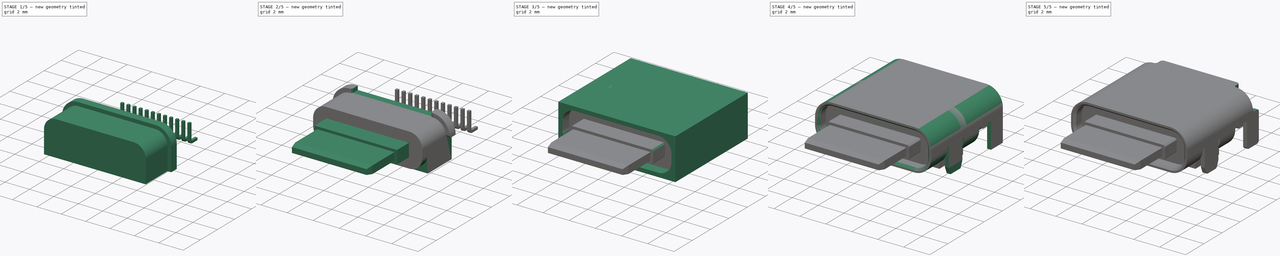
[diagram: build sequence overview — one tinted view per stage of 5, left to right]
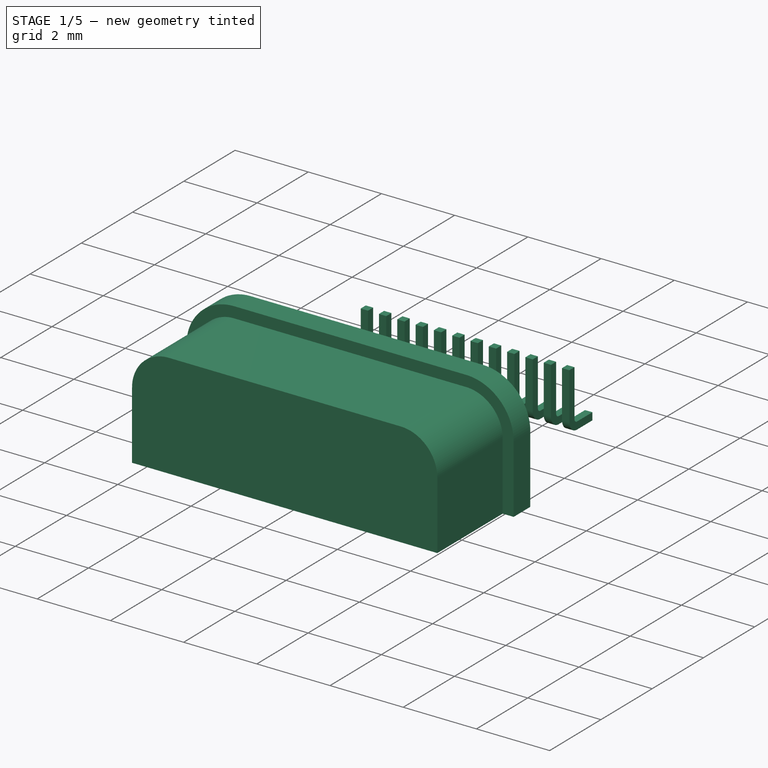
[diagram: stage 1 of 5 — iso view after this stage's code; geometry added in this stage tinted green]
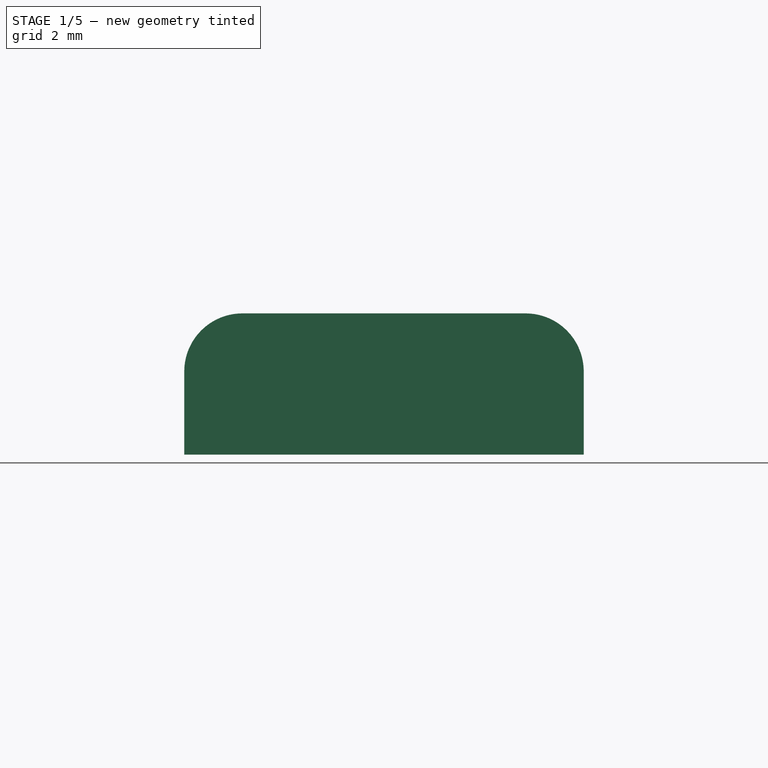
[diagram: stage 1 of 5 — front view after this stage's code; geometry added in this stage tinted green]
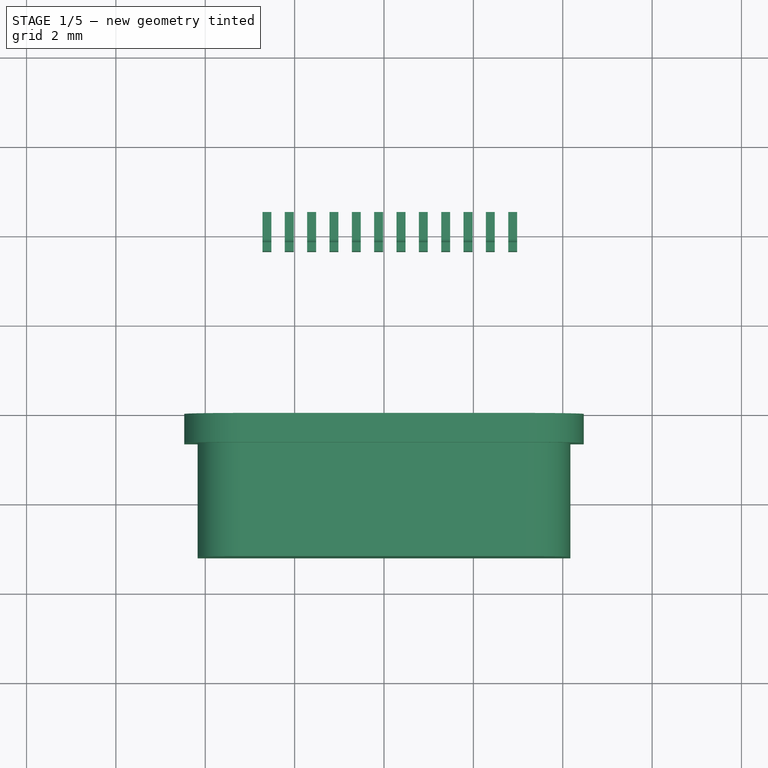
[diagram: stage 1 of 5 — top view after this stage's code; geometry added in this stage tinted green]
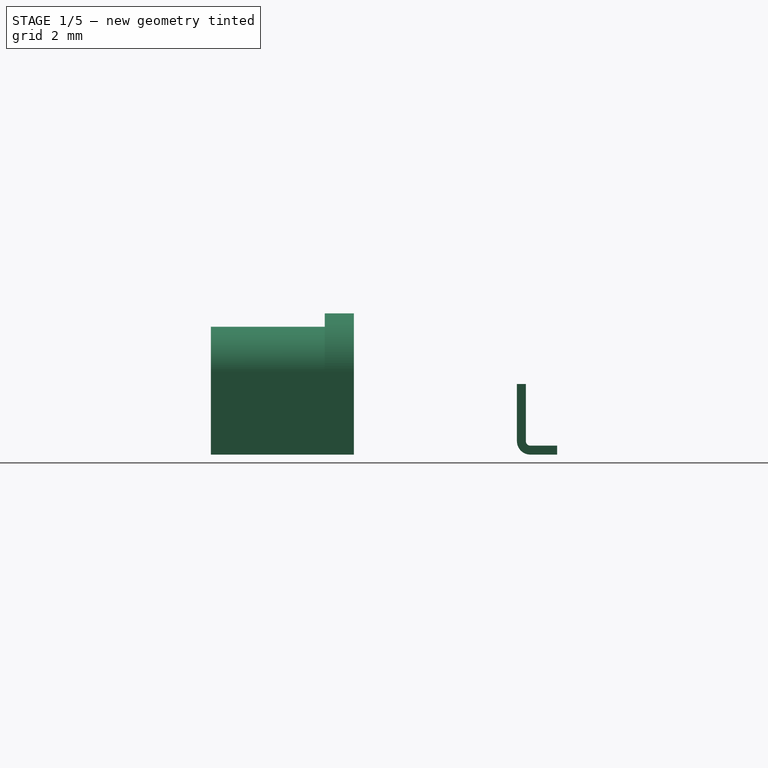
[diagram: stage 1 of 5 — right view after this stage's code; geometry added in this stage tinted green]
FCSTD DOCUMENT  (FreeCAD 0.20R29177 (Git))
Label: USB-C Connector
License: All rights reserved
LicenseURL: http://en.wikipedia.org/wiki/All_rights_reserved
objects: Sketcher::SketchObject×14, PartDesign::Pocket×8, PartDesign::Fillet×7, PartDesign::Pad×6, PartDesign::Chamfer×5, PartDesign::Body×3, Part::FeaturePython×1
note: 69 computed .brp shape members not serialized (recipe doc carries the construction recipe); baked Part::Feature solids carry a one-line shape summary decoded from their .brp

FEATURE [PartDesign::Body] Body
  Group = -> [Sketch,Pad,Sketch001,Pocket,Fillet,Fillet001,Chamfer,Sketch002,Pocket001,Sketch003,Pad001,Fillet002,Chamfer001,Chamfer002,Fillet003,Sketch004,Pocket002,Sketch005,Pocket003,Fillet004]
  Origin = -> Origin
  Tip = -> Fillet004
FEATURE [Sketcher::SketchObject] Sketch006
  FullyConstrained = true
  MapMode = 5
  Placement = pos=(0,0,0) rot=(1,0,0;1.5708rad)
  Support = -> [XZ_Plane001]
  sketch-geometry (4):
    g0: LineSegment StartX=-4.47 StartY=1.58 StartZ=0 EndX=4.47 EndY=1.58 EndZ=0
    g1: LineSegment StartX=4.47 StartY=1.58 StartZ=0 EndX=4.47 EndY=-1.58 EndZ=0
    g2: LineSegment StartX=4.47 StartY=-1.58 StartZ=0 EndX=-4.47 EndY=-1.58 EndZ=0
    g3: LineSegment StartX=-4.47 StartY=-1.58 StartZ=0 EndX=-4.47 EndY=1.58 EndZ=0
  constraints (11):
    c: Coincident(g0,g1)
    c: Coincident(g1,g2)
    c: Coincident(g2,g3)
    c: Coincident(g3,g0)
    c: Horizontal(g0)
    c: Horizontal(g2)
    c: Vertical(g1)
    c: Vertical(g3)
    c: Symmetric(g1,g0,g-1)
    c: DistanceY(g3,g3) = 3.16
    c: DistanceX(g0,g0) = 8.94
FEATURE [PartDesign::Pad] Pad002
  Direction = (0,-1,2e-16)
  Length = 3.2
  Length2 = 10
  Placement = pos=(0,0,0) rot=(1,0,0;1.5708rad)
  Profile = -> Sketch006
  ReferenceAxis = -> Sketch006 [N_Axis]
  Type = 0
FEATURE [PartDesign::Fillet] Fillet005
  Base = -> Pad002 [Edge2,Edge1]
  BaseFeature = -> Pad002
  Placement = pos=(0,0,0) rot=(1,0,0;1.5708rad)
  Radius = 1.3
  SupportTransform = false
  UseAllEdges = false
FEATURE [Sketcher::SketchObject] Sketch007
  ExternalGeometry = -> [Fillet005]
  FullyConstrained = false
  MapMode = 5
  Placement = pos=(0,-3.2,7e-16) rot=(1,0,0;1.5708rad)
  Support = -> [Fillet005]
  sketch-geometry (10):
    g0: LineSegment StartX=-4.17 StartY=-1.58 StartZ=0 EndX=4.17 EndY=-1.58 EndZ=0
    g1: LineSegment StartX=4.17 StartY=-1.58 StartZ=0 EndX=4.17 EndY=0.28 EndZ=0
    g2: LineSegment StartX=3.17 StartY=1.28 StartZ=0 EndX=-3.17 EndY=1.28 EndZ=0
    g3: LineSegment StartX=-4.17 StartY=0.28 StartZ=0 EndX=-4.17 EndY=-1.58 EndZ=0
    g4: ArcOfCircle CenterX=-3.17 CenterY=0.28 CenterZ=0 NormalX=0 NormalY=0 NormalZ=1 AngleXU=0 Radius=1 StartAngle=1.5708 EndAngle=3.14159
    g5: ArcOfCircle CenterX=3.17 CenterY=0.28 CenterZ=0 NormalX=0 NormalY=0 NormalZ=1 AngleXU=0 Radius=1 StartAngle=0 EndAngle=1.5708
    g6: LineSegment StartX=-4.85328 StartY=1.98712 StartZ=0 EndX=4.89634 EndY=1.98712 EndZ=0
    g7: LineSegment StartX=4.89633 StartY=1.98712 StartZ=0 EndX=4.89633 EndY=-1.9073 EndZ=0
    g8: LineSegment StartX=4.89633 StartY=-1.9073 StartZ=0 EndX=-4.85328 EndY=-1.9073 EndZ=0
    g9: LineSegment StartX=-4.85328 StartY=-1.9073 StartZ=0 EndX=-4.85328 EndY=1.98712 EndZ=0
  constraints (23):
    c: Coincident(g0,g1)
    c: Coincident(g3,g0)
    c: Horizontal(g2)
    c: Vertical(g1)
    c: Vertical(g3)
    c: PointOnObject(g0,g-3)
    c: Symmetric(g0,g0,g-2)
    c: DistanceX(g0,g-3) = 0.3
    c: Tangent(g2,g4) = -1.5708
    c: Tangent(g3,g4) = -1.5708
    c: Tangent(g2,g5) = -1.5708
    c: Tangent(g1,g5) = -1.5708
    c: Equal(g5,g4)
    c: Radius(g5) = 1
    c: DistanceY(g2,g-4) = 0.3
    c: Coincident(g6,g7)
    c: Coincident(g7,g8)
    c: Coincident(g8,g9)
    c: Coincident(g9,g6)
    c: Horizontal(g6)
    c: Horizontal(g8)
    c: Vertical(g7)
    c: Vertical(g9)
FEATURE [PartDesign::Pocket] Pocket004
  BaseFeature = -> Fillet005
  Direction = (0,1,-2e-16)
  Length = 2.55
  Length2 = 5
  Placement = pos=(0,0,0) rot=(1,0,0;1.5708rad)
  Profile = -> Sketch007
  ReferenceAxis = -> Sketch007 [N_Axis]
  Type = 0
FEATURE [PartDesign::Body] Body001
  Group = -> [Sketch006,Pad002,Fillet005,Sketch007,Pocket004,Sketch008,Pocket005,Sketch009,Pocket006,Fillet006,Sketch010,Pad003,Sketch011,Pad004,Chamfer003,Chamfer004,Sketch012,Pocket007]
  Origin = -> Origin001
  Placement = pos=(5.3e-15,3.95,7e-16) rot=(0,0,1;0rad)
  Tip = -> Pocket007
FEATURE [Sketcher::SketchObject] Sketch013
  FullyConstrained = true
  MapMode = 5
  Placement = pos=(0,0,0) rot=(0.57735,0.57735,0.57735;2.0944rad)
  Support = -> [YZ_Plane002]
  sketch-geometry (8):
    g0: LineSegment StartX=3.65 StartY=0 StartZ=0 EndX=3.85 EndY=0 EndZ=0
    g1: LineSegment StartX=4.55 StartY=-1.38 StartZ=0 EndX=4.55 EndY=-1.58 EndZ=0
    g2: LineSegment StartX=4.55 StartY=-1.58 StartZ=0 EndX=3.95 EndY=-1.58 EndZ=0
    g3: LineSegment StartX=3.65 StartY=-1.28 StartZ=0 EndX=3.65 EndY=0 EndZ=0
    g4: LineSegment StartX=3.85 StartY=0 StartZ=0 EndX=3.85 EndY=-1.28 EndZ=0
    g5: LineSegment StartX=3.95 StartY=-1.38 StartZ=0 EndX=4.55 EndY=-1.38 EndZ=0
    g6: ArcOfCircle CenterX=3.95 CenterY=-1.28 CenterZ=0 NormalX=0 NormalY=0 NormalZ=1 AngleXU=0 Radius=0.1 StartAngle=3.14159 EndAngle=4.71239
    g7: ArcOfCircle CenterX=3.95 CenterY=-1.28 CenterZ=0 NormalX=0 NormalY=0 NormalZ=1 AngleXU=0 Radius=0.3 StartAngle=3.14159 EndAngle=4.71239
  constraints (21):
    c: Coincident(g1,g2)
    c: Coincident(g3,g0)
    c: Horizontal(g0)
    c: Horizontal(g2)
    c: Vertical(g1)
    c: Vertical(g3)
    c: Vertical(g4)
    c: Horizontal(g5)
    c: Coincident(g0,g4)
    c: Coincident(g1,g5)
    c: DistanceY(g1,g1) = 0.2
    c: Tangent(g4,g6) = -1.5708
    c: Tangent(g5,g6) = -1.5708
    c: Tangent(g3,g7) = 1.5708
    c: Tangent(g2,g7) = 1.5708
    c: Coincident(g6,g7)
    c: DistanceY(g1,g-1) = 1.58
    c: PointOnObject(g0,g-1)
    c: Radius(g6) = 0.1
    c: DistanceX(g2,g2) = 0.6
    c: DistanceX(g-1,g0) = 3.65
FEATURE [PartDesign::Pad] Pad005
  Direction = (1,-2e-16,3e-16)
  Length = 0.2
  Length2 = 10
  Midplane = true
  Placement = pos=(0,0,0) rot=(0.57735,0.57735,0.57735;2.0944rad)
  Profile = -> Sketch013
  ReferenceAxis = -> Sketch013 [N_Axis]
  Type = 0
FEATURE [PartDesign::Body] Body002
  Group = -> [Sketch013,Pad005]
  Origin = -> Origin002
  Placement = pos=(-2.62,0,0) rot=(0,0,1;0rad)
  Tip = -> Pad005
FEATURE [Part::FeaturePython] Array  # Draft array (typed FeaturePython)
  AlwaysSyncPlacement = false
  Angle = 360
  ArrayType = 0
  Axis = (0,0,1)
  Base = -> Body002
  Center = (0,0,0)
  Count = 12
  ExpandArray = false
  Fuse = false
  IntervalAxis = (0,0,0)
  IntervalX = (0.5,0,0)
  IntervalY = (0,100,0)
  IntervalZ = (0,0,100)
  NumberCircles = 3
  NumberPolar = 5
  NumberX = 12
  NumberY = 1
  NumberZ = 1
  PlacementList = 12 placements: arithmetic series from (-2.62,0,0) step (0.5,0,0) to (2.88,0,0)
  RadialDistance = 50
  ScaleList = (12) [(1,1,1),(1,1,1),(1,1,1),(1,1,1),(1,1,1),(1,1,1),(1,1,1),(1,1,1),(1,1,1),(1,1,1),(1,1,1),(1,1,1)]
  Symmetry = 1
  TangentialDistance = 25
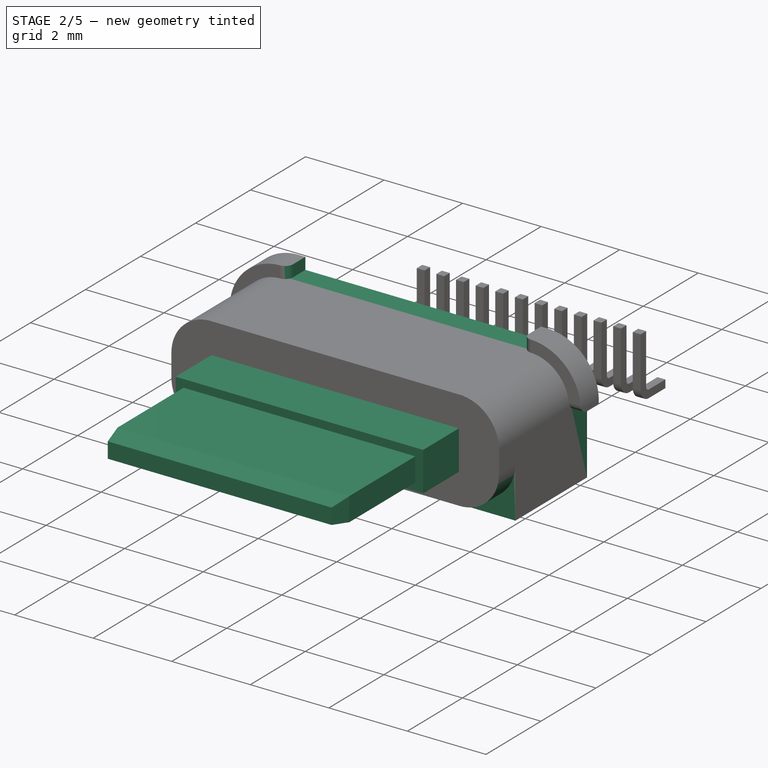
[diagram: stage 2 of 5 — iso view after this stage's code; geometry added in this stage tinted green]
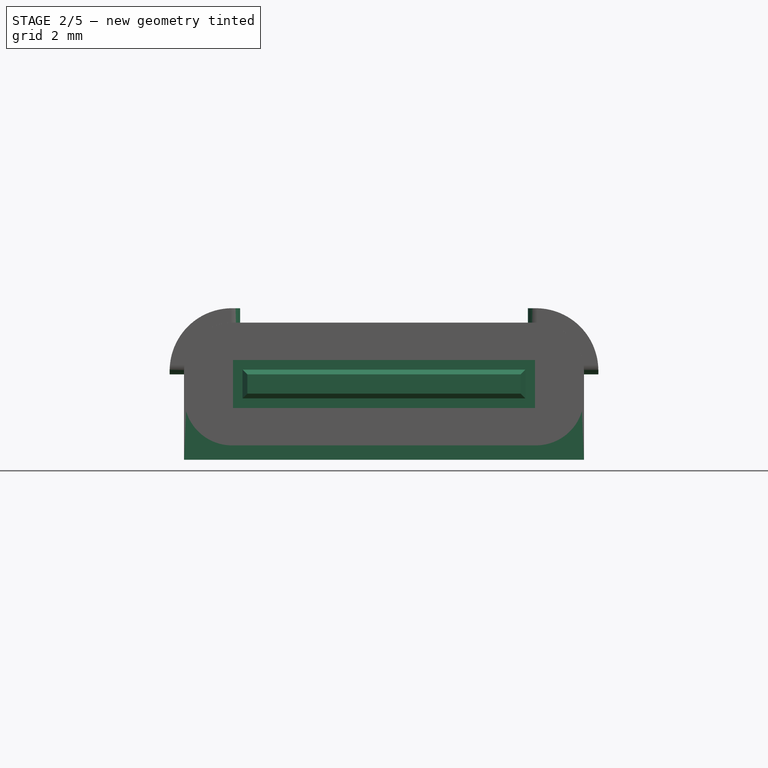
[diagram: stage 2 of 5 — front view after this stage's code; geometry added in this stage tinted green]
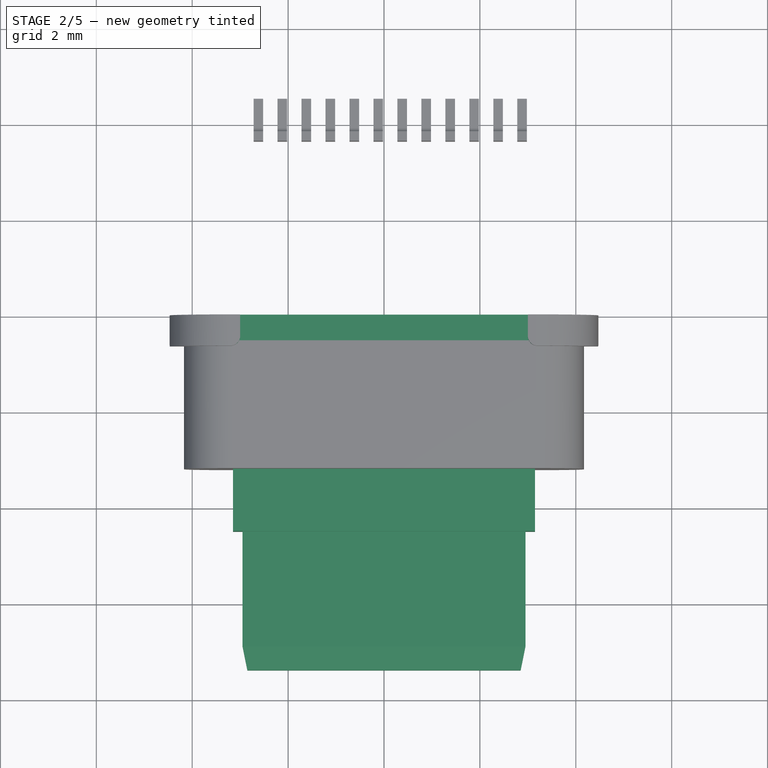
[diagram: stage 2 of 5 — top view after this stage's code; geometry added in this stage tinted green]
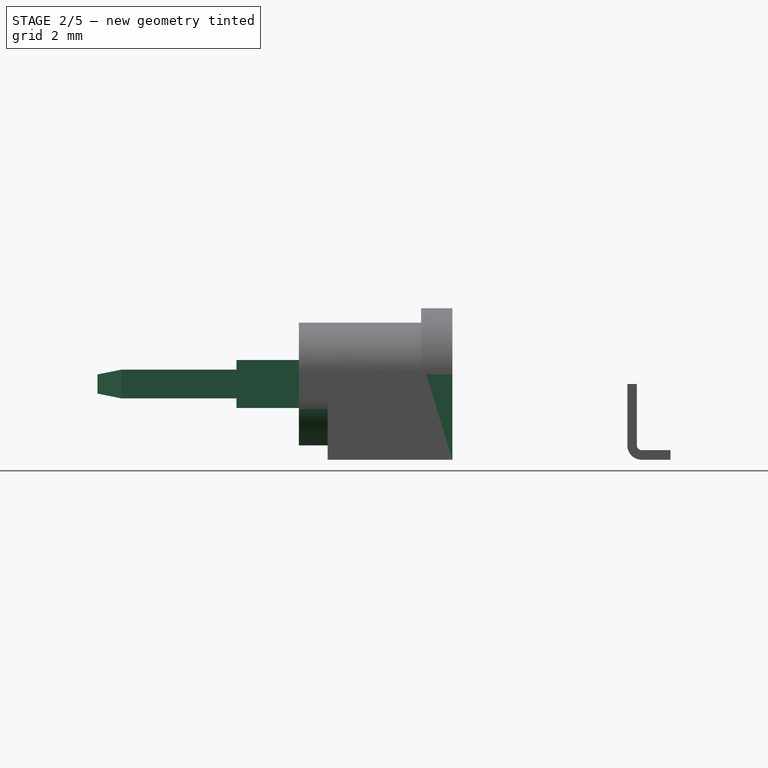
[diagram: stage 2 of 5 — right view after this stage's code; geometry added in this stage tinted green]
FEATURE [Sketcher::SketchObject] Sketch008
  FullyConstrained = true
  MapMode = 5
  Placement = pos=(0,-3.2,7e-16) rot=(1,0,0;1.5708rad)
  Support = -> [Pocket004]
  sketch-geometry (8):
    g0: LineSegment StartX=3.17 StartY=-1.28 StartZ=0 EndX=-3.17 EndY=-1.28 EndZ=0
    g1: ArcOfCircle CenterX=-3.17 CenterY=-0.28 CenterZ=0 NormalX=0 NormalY=0 NormalZ=1 AngleXU=0 Radius=1 StartAngle=3.14159 EndAngle=4.71239
    g2: ArcOfCircle CenterX=3.17 CenterY=-0.28 CenterZ=0 NormalX=0 NormalY=0 NormalZ=1 AngleXU=0 Radius=1 StartAngle=4.71239 EndAngle=6.28319
    g3: LineSegment StartX=-4.17 StartY=-0.28 StartZ=0 EndX=-5 EndY=-0.28 EndZ=0
    g4: LineSegment StartX=-5 StartY=-0.28 StartZ=0 EndX=-5 EndY=-2.28 EndZ=0
    g5: LineSegment StartX=-5 StartY=-2.28 StartZ=0 EndX=5 EndY=-2.28 EndZ=0
    g6: LineSegment StartX=5 StartY=-2.28 StartZ=0 EndX=5 EndY=-0.28 EndZ=0
    g7: LineSegment StartX=5 StartY=-0.28 StartZ=0 EndX=4.17 EndY=-0.28 EndZ=0
  constraints (23):
    c: Tangent(g0,g1) = 1.5708
    c: Tangent(g0,g2) = 1.5708
    c: Equal(g2,g1)
    c: Radius(g1) = 1
    c: Symmetric(g0,g0,g-2)
    c: DistanceY(g0,g-1) = 1.28
    c: Horizontal(g2,g2)
    c: Horizontal(g1,g1)
    c: Horizontal(g3)
    c: Coincident(g3,g4)
    c: Vertical(g4)
    c: Coincident(g4,g5)
    c: Horizontal(g5)
    c: Coincident(g5,g6)
    c: Vertical(g6)
    c: Coincident(g6,g7)
    c: Coincident(g7,g2)
    c: Horizontal(g7)
    c: Equal(g7,g3)
    c: Coincident(g1,g3)
    c: DistanceX(g1,g2) = 8.34
    c: DistanceX(g5,g5) = 10
    c: DistanceY(g6,g6) = 2
FEATURE [PartDesign::Pocket] Pocket005
  BaseFeature = -> Pocket004
  Direction = (0,1,-2e-16)
  Length = 0.6
  Length2 = 5
  Placement = pos=(0,0,0) rot=(1,0,0;1.5708rad)
  Profile = -> Sketch008
  ReferenceAxis = -> Sketch008 [N_Axis]
  Type = 0
FEATURE [Sketcher::SketchObject] Sketch009
  ExternalGeometry = -> [Pocket005]
  FullyConstrained = true
  MapMode = 5
  Placement = pos=(0,-0.65,2e-16) rot=(1,0,0;1.5708rad)
  Support = -> [Pocket005]
  sketch-geometry (12):
    g0: LineSegment StartX=-3 StartY=1.58 StartZ=0 EndX=3 EndY=1.58 EndZ=0
    g1: LineSegment StartX=3 StartY=1.58 StartZ=0 EndX=3 EndY=1.28 EndZ=0
    g2: LineSegment StartX=3 StartY=1.28 StartZ=0 EndX=-3 EndY=1.28 EndZ=0
    g3: LineSegment StartX=-3 StartY=1.28 StartZ=0 EndX=-3 EndY=1.58 EndZ=0
    g4: LineSegment StartX=4.47 StartY=0.2 StartZ=0 EndX=4.17 EndY=0.2 EndZ=0
    g5: LineSegment StartX=4.17 StartY=0.2 StartZ=0 EndX=4.17 EndY=-1.58 EndZ=0
    g6: LineSegment StartX=4.17 StartY=-1.58 StartZ=0 EndX=4.47 EndY=-1.58 EndZ=0
    g7: LineSegment StartX=4.47 StartY=-1.58 StartZ=0 EndX=4.47 EndY=0.2 EndZ=0
    g8: LineSegment StartX=-4.47 StartY=-1.58 StartZ=0 EndX=-4.17 EndY=-1.58 EndZ=0
    g9: LineSegment StartX=-4.17 StartY=-1.58 StartZ=0 EndX=-4.17 EndY=0.2 EndZ=0
    g10: LineSegment StartX=-4.17 StartY=0.2 StartZ=0 EndX=-4.47 EndY=0.2 EndZ=0
    g11: LineSegment StartX=-4.47 StartY=0.2 StartZ=0 EndX=-4.47 EndY=-1.58 EndZ=0
  constraints (33):
    c: Coincident(g0,g1)
    c: Coincident(g1,g2)
    c: Coincident(g2,g3)
    c: Coincident(g3,g0)
    c: Horizontal(g0)
    c: Vertical(g1)
    c: Vertical(g3)
    c: PointOnObject(g0,g-6)
    c: PointOnObject(g1,g-5)
    c: Coincident(g4,g5)
    c: Coincident(g5,g6)
    c: Coincident(g6,g7)
    c: Coincident(g7,g4)
    c: Horizontal(g4)
    c: Horizontal(g6)
    c: Vertical(g5)
    c: Vertical(g7)
    c: PointOnObject(g4,g-4)
    c: Coincident(g5,g-3)
    c: Coincident(g8,g9)
    c: Coincident(g9,g10)
    c: Coincident(g10,g11)
    c: Coincident(g11,g8)
    c: Horizontal(g8)
    c: Horizontal(g10)
    c: Vertical(g9)
    c: Vertical(g11)
    c: Coincident(g8,g-7)
    c: PointOnObject(g9,g-8)
    c: Equal(g5,g9)
    c: Symmetric(g2,g1,g-2)
    c: DistanceY(g5,g5) = 1.78
    c: DistanceX(g0,g0) = 6
FEATURE [PartDesign::Pocket] Pocket006
  BaseFeature = -> Pocket005
  Direction = (0,1,-2e-16)
  Length = 5
  Length2 = 5
  Placement = pos=(0,0,0) rot=(1,0,0;1.5708rad)
  Profile = -> Sketch009
  ReferenceAxis = -> Sketch009 [N_Axis]
  Refine = true
  Type = 0
FEATURE [PartDesign::Fillet] Fillet006
  Base = -> Pocket006 [Edge38,Edge29,Edge18,Edge24]
  BaseFeature = -> Pocket006
  Placement = pos=(0,0,0) rot=(1,0,0;1.5708rad)
  Radius = 0.2
  SupportTransform = false
  UseAllEdges = false
FEATURE [Sketcher::SketchObject] Sketch010
  FullyConstrained = true
  MapMode = 5
  Placement = pos=(0,-3.2,7e-16) rot=(1,0,0;1.5708rad)
  Support = -> [Fillet006]
  sketch-geometry (4):
    g0: LineSegment StartX=-3.15 StartY=0.5 StartZ=0 EndX=3.15 EndY=0.5 EndZ=0
    g1: LineSegment StartX=3.15 StartY=0.5 StartZ=0 EndX=3.15 EndY=-0.5 EndZ=0
    g2: LineSegment StartX=3.15 StartY=-0.5 StartZ=0 EndX=-3.15 EndY=-0.5 EndZ=0
    g3: LineSegment StartX=-3.15 StartY=-0.5 StartZ=0 EndX=-3.15 EndY=0.5 EndZ=0
  constraints (11):
    c: Coincident(g0,g1)
    c: Coincident(g1,g2)
    c: Coincident(g2,g3)
    c: Coincident(g3,g0)
    c: Horizontal(g0)
    c: Horizontal(g2)
    c: Vertical(g1)
    c: Vertical(g3)
    c: Symmetric(g0,g1,g-1)
    c: DistanceX(g0,g0) = 6.3
    c: DistanceY(g3,g3) = 1
FEATURE [PartDesign::Pad] Pad003
  BaseFeature = -> Fillet006
  Direction = (0,-1,2e-16)
  Length = 1.3
  Length2 = 10
  Placement = pos=(0,0,0) rot=(1,0,0;1.5708rad)
  Profile = -> Sketch010
  ReferenceAxis = -> Sketch010 [N_Axis]
  Type = 0
FEATURE [Sketcher::SketchObject] Sketch011
  ExternalGeometry = -> [Pad003]
  FullyConstrained = true
  MapMode = 5
  Placement = pos=(0,-4.5,0) rot=(1,0,0;1.5708rad)
  Support = -> [Pad003]
  sketch-geometry (6):
    g0: LineSegment StartX=-2.95 StartY=0.3 StartZ=0 EndX=2.95 EndY=0.3 EndZ=0
    g1: LineSegment StartX=2.95 StartY=0.3 StartZ=0 EndX=2.95 EndY=-0.3 EndZ=0
    g2: LineSegment StartX=2.95 StartY=-0.3 StartZ=0 EndX=-2.95 EndY=-0.3 EndZ=0
    g3: LineSegment StartX=-2.95 StartY=-0.3 StartZ=0 EndX=-2.95 EndY=0.3 EndZ=0
    g4: LineSegment StartX=2.95 StartY=0.3 StartZ=0 EndX=2.95 EndY=0.5 EndZ=0
    g5: LineSegment StartX=2.95 StartY=0.3 StartZ=0 EndX=3.15 EndY=0.3 EndZ=0
  constraints (17):
    c: Coincident(g0,g1)
    c: Coincident(g1,g2)
    c: Coincident(g2,g3)
    c: Coincident(g3,g0)
    c: Horizontal(g0)
    c: Horizontal(g2)
    c: Vertical(g1)
    c: Vertical(g3)
    c: Symmetric(g1,g0,g-1)
    c: Coincident(g4,g0)
    c: PointOnObject(g4,g-3)
    c: Vertical(g4)
    c: Coincident(g5,g0)
    c: PointOnObject(g5,g-4)
    c: Horizontal(g5)
    c: Equal(g5,g4)
    c: DistanceX(g4,g-4) = 0.2
FEATURE [PartDesign::Pad] Pad004
  BaseFeature = -> Pad003
  Direction = (0,-1,2e-16)
  Length = 2.9
  Length2 = 10
  Placement = pos=(0,0,0) rot=(1,0,0;1.5708rad)
  Profile = -> Sketch011
  ReferenceAxis = -> Sketch011 [N_Axis]
  Type = 0
FEATURE [PartDesign::Chamfer] Chamfer003
  Angle = 45
  Base = -> Pad004 [Face38]
  BaseFeature = -> Pad004
  ChamferType = 1
  FlipDirection = false
  Placement = pos=(0,0,0) rot=(1,0,0;1.5708rad)
  Size = 0.1
  Size2 = 0.5
  SupportTransform = false
  UseAllEdges = false
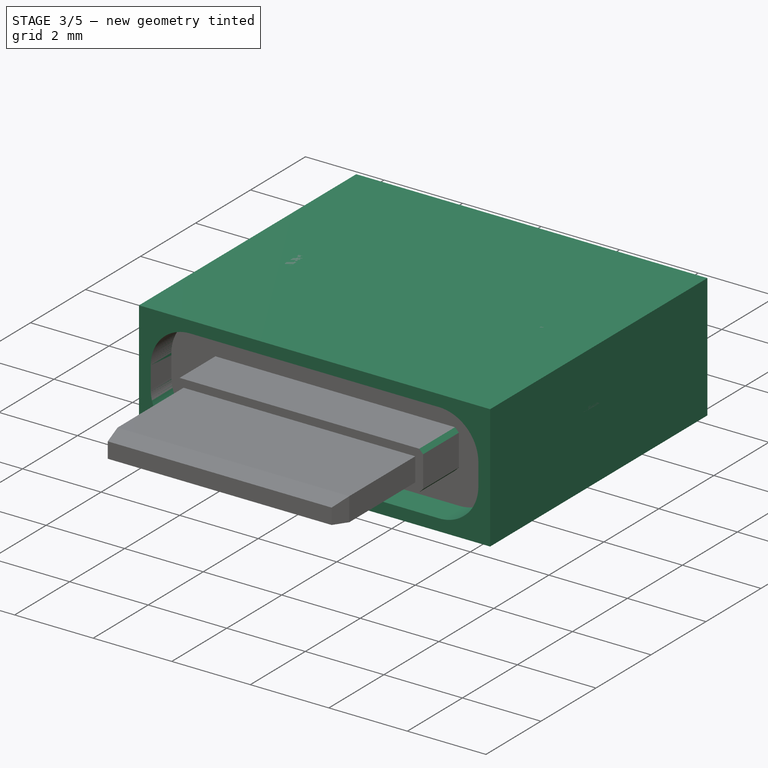
[diagram: stage 3 of 5 — iso view after this stage's code; geometry added in this stage tinted green]
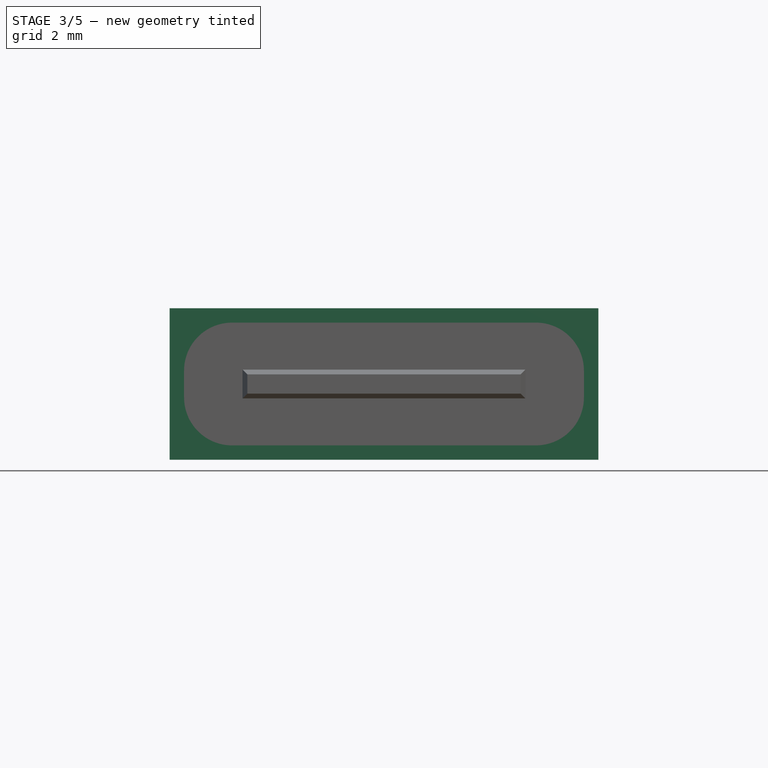
[diagram: stage 3 of 5 — front view after this stage's code; geometry added in this stage tinted green]
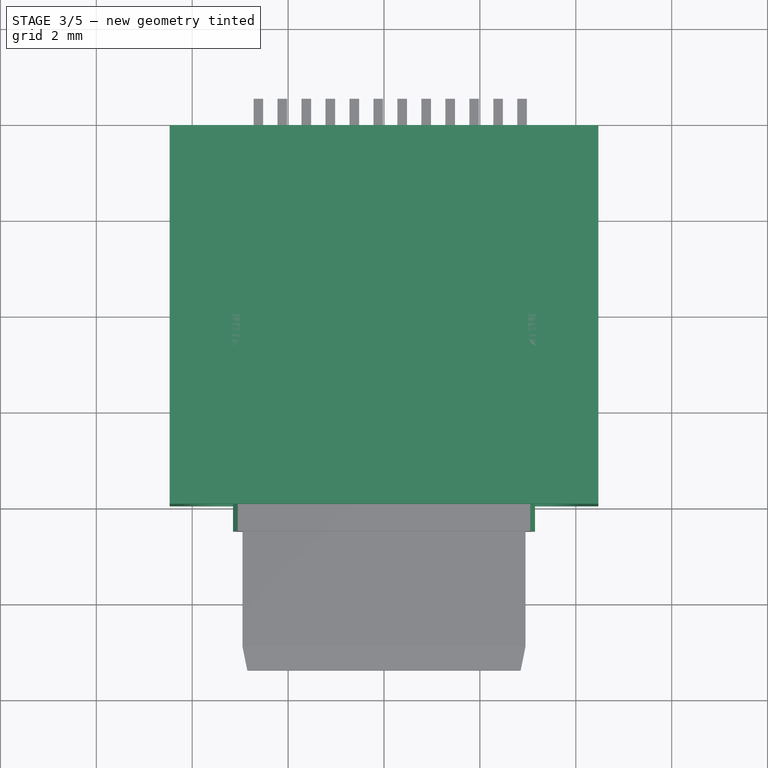
[diagram: stage 3 of 5 — top view after this stage's code; geometry added in this stage tinted green]
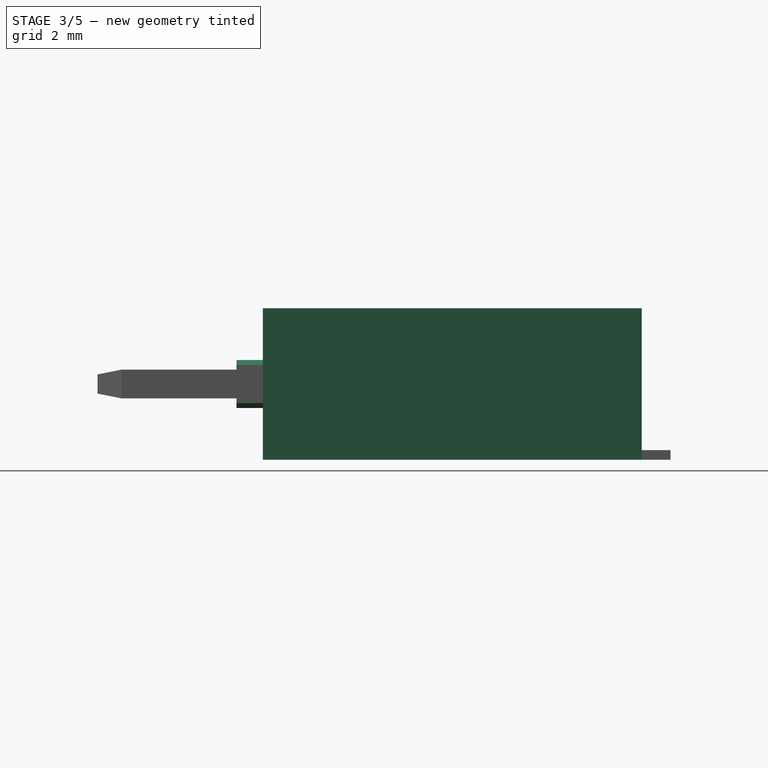
[diagram: stage 3 of 5 — right view after this stage's code; geometry added in this stage tinted green]
FEATURE [Sketcher::SketchObject] Sketch
  FullyConstrained = true
  MapMode = 5
  Placement = pos=(0,0,0) rot=(1,0,0;1.5708rad)
  Support = -> [XZ_Plane]
  sketch-geometry (4):
    g0: LineSegment StartX=-4.47 StartY=1.58 StartZ=0 EndX=4.47 EndY=1.58 EndZ=0
    g1: LineSegment StartX=4.47 StartY=1.58 StartZ=0 EndX=4.47 EndY=-1.58 EndZ=0
    g2: LineSegment StartX=4.47 StartY=-1.58 StartZ=0 EndX=-4.47 EndY=-1.58 EndZ=0
    g3: LineSegment StartX=-4.47 StartY=-1.58 StartZ=0 EndX=-4.47 EndY=1.58 EndZ=0
  constraints (11):
    c: Coincident(g0,g1)
    c: Coincident(g1,g2)
    c: Coincident(g2,g3)
    c: Coincident(g3,g0)
    c: Horizontal(g0)
    c: Horizontal(g2)
    c: Vertical(g1)
    c: Vertical(g3)
    c: Symmetric(g1,g0,g-1)
    c: DistanceX(g0,g0) = 8.94
    c: DistanceY(g3,g3) = 3.16
FEATURE [PartDesign::Pad] Pad
  Direction = (0,-1,2e-16)
  Length = 7.9
  Length2 = 10
  Midplane = true
  Placement = pos=(0,0,0) rot=(1,0,0;1.5708rad)
  Profile = -> Sketch
  ReferenceAxis = -> Sketch [N_Axis]
  Type = 0
FEATURE [Sketcher::SketchObject] Sketch001
  ExternalGeometry = -> [Pad]
  FullyConstrained = true
  MapMode = 5
  Placement = pos=(0,-3.95,9e-16) rot=(1,0,0;1.5708rad)
  Support = -> [Pad]
  sketch-geometry (6):
    g0: LineSegment StartX=-4.17 StartY=1.28 StartZ=0 EndX=4.17 EndY=1.28 EndZ=0
    g1: LineSegment StartX=4.17 StartY=1.28 StartZ=0 EndX=4.17 EndY=-1.28 EndZ=0
    g2: LineSegment StartX=4.17 StartY=-1.28 StartZ=0 EndX=-4.17 EndY=-1.28 EndZ=0
    g3: LineSegment StartX=-4.17 StartY=-1.28 StartZ=0 EndX=-4.17 EndY=1.28 EndZ=0
    g4: LineSegment StartX=4.17 StartY=1.28 StartZ=0 EndX=4.47 EndY=1.28 EndZ=0
    g5: LineSegment StartX=4.17 StartY=1.28 StartZ=0 EndX=4.17 EndY=1.58 EndZ=0
  constraints (18):
    c: Coincident(g0,g1)
    c: Coincident(g1,g2)
    c: Coincident(g2,g3)
    c: Coincident(g3,g0)
    c: Horizontal(g0)
    c: Horizontal(g2)
    c: Vertical(g1)
    c: Vertical(g3)
    c: Symmetric(g1,g0,g-1)
    c: DistanceX(g0,g0) = 8.34
    c: Coincident(g4,g0)
    c: PointOnObject(g4,g-4)
    c: Horizontal(g4)
    c: Coincident(g5,g0)
    c: PointOnObject(g5,g-3)
    c: Vertical(g5)
    c: Equal(g5,g4)
    c: DistanceX(g5,g-4) = 0.3
FEATURE [PartDesign::Pocket] Pocket
  BaseFeature = -> Pad
  Direction = (0,1,-2e-16)
  Length = 5
  Length2 = 5
  Placement = pos=(0,0,0) rot=(1,0,0;1.5708rad)
  Profile = -> Sketch001
  ReferenceAxis = -> Sketch001 [N_Axis]
  Type = 1
FEATURE [PartDesign::Fillet] Fillet
  Base = -> Pocket [Edge23,Edge24,Edge21,Edge22]
  BaseFeature = -> Pocket
  Placement = pos=(0,0,0) rot=(1,0,0;1.5708rad)
  Radius = 1
  SupportTransform = false
  UseAllEdges = false
FEATURE [PartDesign::Chamfer] Chamfer004
  Angle = 45
  Base = -> Chamfer003 [Edge25,Edge28,Edge26,Edge30]
  BaseFeature = -> Chamfer003
  ChamferType = 0
  FlipDirection = false
  Placement = pos=(0,0,0) rot=(1,0,0;1.5708rad)
  Size = 0.1
  Size2 = 1
  SupportTransform = false
  UseAllEdges = false
FEATURE [Sketcher::SketchObject] Sketch012
  ExternalGeometry = -> [Chamfer004]
  FullyConstrained = true
  MapMode = 5
  Placement = pos=(0,0,0) rot=(-1,0,0;1.5708rad)
  Support = -> [Chamfer004]
  sketch-geometry (4):
    g0: LineSegment StartX=-3.25 StartY=1.58 StartZ=0 EndX=3.25 EndY=1.58 EndZ=0
    g1: LineSegment StartX=3.25 StartY=1.58 StartZ=0 EndX=3.25 EndY=0 EndZ=0
    g2: LineSegment StartX=3.25 StartY=0 StartZ=0 EndX=-3.25 EndY=0 EndZ=0
    g3: LineSegment StartX=-3.25 StartY=0 StartZ=0 EndX=-3.25 EndY=1.58 EndZ=0
  constraints (11):
    c: Coincident(g0,g1)
    c: Coincident(g1,g2)
    c: Coincident(g2,g3)
    c: Coincident(g3,g0)
    c: Horizontal(g2)
    c: Vertical(g1)
    c: Vertical(g3)
    c: PointOnObject(g0,g-3)
    c: Symmetric(g0,g0,g-2)
    c: PointOnObject(g1,g-1)
    c: DistanceX(g0,g0) = 6.5
FEATURE [PartDesign::Pocket] Pocket007
  BaseFeature = -> Chamfer004
  Direction = (0,-1,2e-16)
  Length = 0.3
  Length2 = 5
  Placement = pos=(0,0,0) rot=(1,0,0;1.5708rad)
  Profile = -> Sketch012
  ReferenceAxis = -> Sketch012 [N_Axis]
  Type = 0
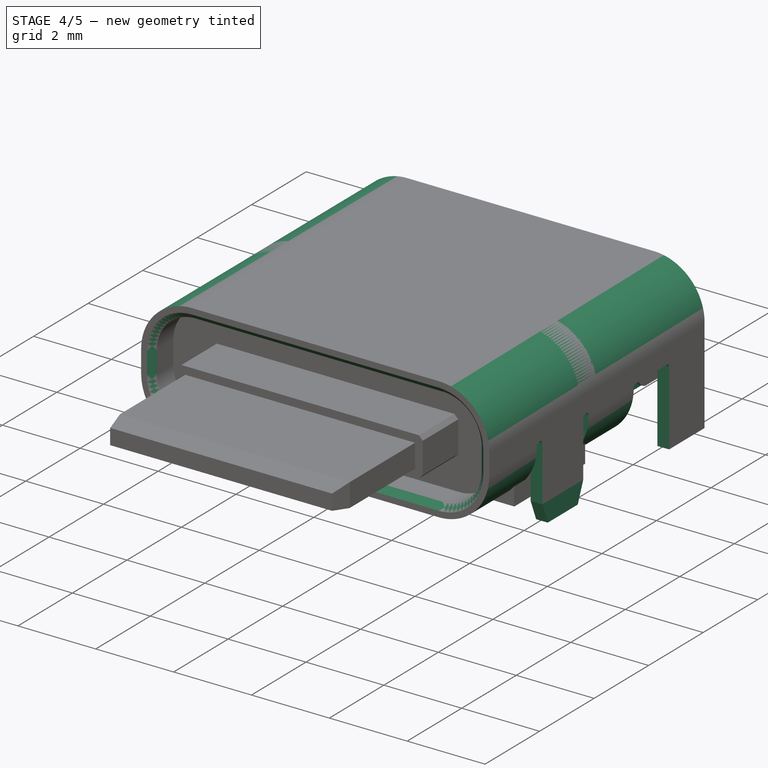
[diagram: stage 4 of 5 — iso view after this stage's code; geometry added in this stage tinted green]
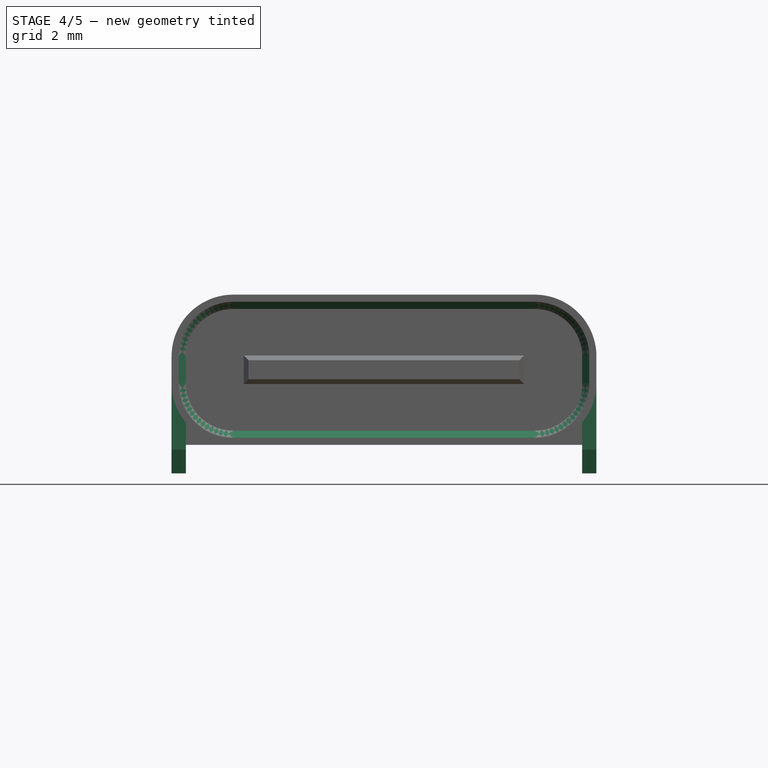
[diagram: stage 4 of 5 — front view after this stage's code; geometry added in this stage tinted green]
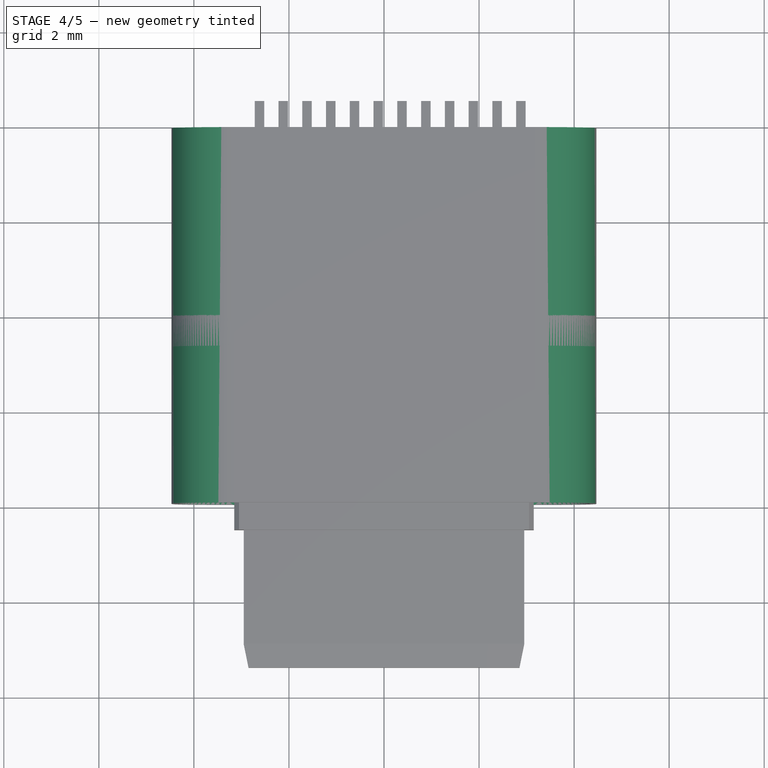
[diagram: stage 4 of 5 — top view after this stage's code; geometry added in this stage tinted green]
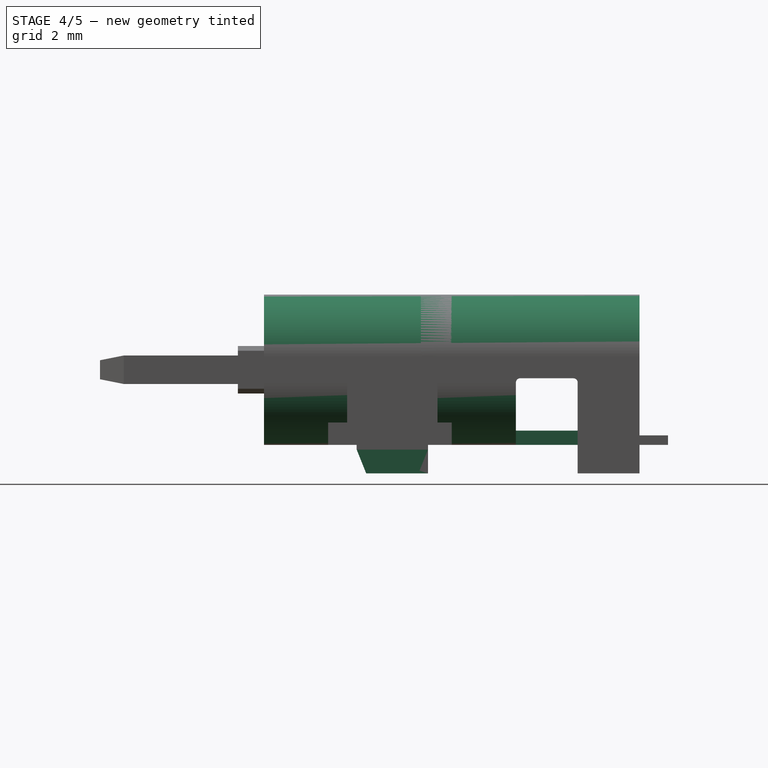
[diagram: stage 4 of 5 — right view after this stage's code; geometry added in this stage tinted green]
FEATURE [PartDesign::Fillet] Fillet001
  Base = -> Fillet [Edge29,Edge32,Edge30,Edge34]
  BaseFeature = -> Fillet
  Placement = pos=(0,0,0) rot=(1,0,0;1.5708rad)
  Radius = 1.3
  SupportTransform = false
  UseAllEdges = false
FEATURE [PartDesign::Chamfer] Chamfer
  Angle = 45
  Base = -> Fillet001 [Edge42]
  BaseFeature = -> Fillet001
  ChamferType = 0
  FlipDirection = false
  Placement = pos=(0,0,0) rot=(1,0,0;1.5708rad)
  Size = 0.15
  Size2 = 1
  SupportTransform = false
  UseAllEdges = false
FEATURE [Sketcher::SketchObject] Sketch002
  ExternalGeometry = -> [Chamfer]
  FullyConstrained = true
  MapMode = 5
  Placement = pos=(0,-4e-16,-1.58) rot=(1,0,0;3.14159rad)
  Support = -> [Chamfer]
  sketch-geometry (18):
    g0: LineSegment StartX=2.9 StartY=2.2 StartZ=0 EndX=4.9 EndY=2.2 EndZ=0
    g1: LineSegment StartX=4.9 StartY=2.2 StartZ=0 EndX=4.9 EndY=0.3 EndZ=0
    g2: LineSegment StartX=4.9 StartY=0.3 StartZ=0 EndX=2.9 EndY=0.3 EndZ=0
    g3: LineSegment StartX=2.9 StartY=0.3 StartZ=0 EndX=2.9 EndY=2.2 EndZ=0
    g4: LineSegment StartX=-4.9 StartY=2.2 StartZ=0 EndX=-2.9 EndY=2.2 EndZ=0
    g5: LineSegment StartX=-2.9 StartY=2.2 StartZ=0 EndX=-2.9 EndY=0.3 EndZ=0
    g6: LineSegment StartX=-2.9 StartY=0.3 StartZ=0 EndX=-4.9 EndY=0.3 EndZ=0
    g7: LineSegment StartX=-4.9 StartY=0.3 StartZ=0 EndX=-4.9 EndY=2.2 EndZ=0
    g8: LineSegment StartX=-4.9 StartY=-1.35 StartZ=0 EndX=-2.9 EndY=-1.35 EndZ=0
    g9: LineSegment StartX=-2.9 StartY=-1.35 StartZ=0 EndX=-2.9 EndY=-3.95 EndZ=0
    g10: LineSegment StartX=-2.9 StartY=-3.95 StartZ=0 EndX=-4.9 EndY=-3.95 EndZ=0
    g11: LineSegment StartX=-4.9 StartY=-3.95 StartZ=0 EndX=-4.9 EndY=-1.35 EndZ=0
    g12: LineSegment StartX=2.9 StartY=-1.35 StartZ=0 EndX=4.9 EndY=-1.35 EndZ=0
    g13: LineSegment StartX=4.9 StartY=-1.35 StartZ=0 EndX=4.9 EndY=-3.95 EndZ=0
    g14: LineSegment StartX=4.9 StartY=-3.95 StartZ=0 EndX=2.9 EndY=-3.95 EndZ=0
    g15: LineSegment StartX=2.9 StartY=-3.95 StartZ=0 EndX=2.9 EndY=-1.35 EndZ=0
    g16: LineSegment StartX=2.9 StartY=2.2 StartZ=0 EndX=3.9 EndY=1.25 EndZ=0
    g17: LineSegment StartX=3.9 StartY=1.25 StartZ=0 EndX=4.9 EndY=0.3 EndZ=0
  constraints (51):
    c: Coincident(g0,g1)
    c: Coincident(g1,g2)
    c: Coincident(g2,g3)
    c: Coincident(g3,g0)
    c: Horizontal(g0)
    c: Horizontal(g2)
    c: Vertical(g1)
    c: Vertical(g3)
    c: Coincident(g4,g5)
    c: Coincident(g5,g6)
    c: Coincident(g6,g7)
    c: Coincident(g7,g4)
    c: Horizontal(g4)
    c: Horizontal(g6)
    c: Vertical(g5)
    c: Vertical(g7)
    c: Coincident(g8,g9)
    c: Coincident(g9,g10)
    c: Coincident(g10,g11)
    c: Coincident(g11,g8)
    c: Horizontal(g8)
    c: Horizontal(g10)
    c: Vertical(g9)
    c: Vertical(g11)
    c: Coincident(g12,g13)
    c: Coincident(g13,g14)
    c: Coincident(g14,g15)
    c: Coincident(g15,g12)
    c: Horizontal(g12)
    c: Horizontal(g14)
    c: Vertical(g13)
    c: Vertical(g15)
    c: Symmetric(g12,g8,g-2)
    c: Symmetric(g5,g2,g-2)
    c: Vertical(g5,g8)
    c: Equal(g3,g5)
    c: Equal(g15,g9)
    c: Coincident(g16,g0)
    c: Coincident(g17,g16)
    c: Coincident(g17,g1)
    c: Equal(g17,g16)
    c: Parallel(g16,g17)
    c: DistanceY(g16,g-3) = 2.7
    c: DistanceY(g1,g1) = 1.9
    c: DistanceX(g4,g0) = 5.8
    c: PointOnObject(g14,g-4)
    c: DistanceY(g13,g13) = 2.6
    c: Equal(g4,g8)
    c: Equal(g8,g12)
    c: Equal(g12,g0)
    c: DistanceX(g4,g4) = 2
FEATURE [PartDesign::Pocket] Pocket001
  BaseFeature = -> Chamfer
  Direction = (0,2e-16,1)
  Length = 1.4
  Length2 = 5
  Placement = pos=(0,0,0) rot=(1,0,0;1.5708rad)
  Profile = -> Sketch002
  ReferenceAxis = -> Sketch002 [N_Axis]
  Type = 0
FEATURE [Sketcher::SketchObject] Sketch003
  ExternalGeometry = -> [Pocket001]
  FullyConstrained = true
  MapMode = 5
  Placement = pos=(0,0,-0.18) rot=(1,0,0;3.14159rad)
  Support = -> [Pocket001]
  sketch-geometry (16):
    g0: LineSegment StartX=-4.47 StartY=2 StartZ=0 EndX=-4.17 EndY=2 EndZ=0
    g1: LineSegment StartX=-4.17 StartY=2 StartZ=0 EndX=-4.17 EndY=0.5 EndZ=0
    g2: LineSegment StartX=-4.17 StartY=0.5 StartZ=0 EndX=-4.47 EndY=0.5 EndZ=0
    g3: LineSegment StartX=-4.47 StartY=0.5 StartZ=0 EndX=-4.47 EndY=2 EndZ=0
    g4: LineSegment StartX=4.17 StartY=2 StartZ=0 EndX=4.47 EndY=2 EndZ=0
    g5: LineSegment StartX=4.47 StartY=2 StartZ=0 EndX=4.47 EndY=0.5 EndZ=0
    g6: LineSegment StartX=4.47 StartY=0.5 StartZ=0 EndX=4.17 EndY=0.5 EndZ=0
    g7: LineSegment StartX=4.17 StartY=0.5 StartZ=0 EndX=4.17 EndY=2 EndZ=0
    g8: LineSegment StartX=4.47 StartY=-2.65 StartZ=0 EndX=4.17 EndY=-2.65 EndZ=0
    g9: LineSegment StartX=4.17 StartY=-2.65 StartZ=0 EndX=4.17 EndY=-3.95 EndZ=0
    g10: LineSegment StartX=4.17 StartY=-3.95 StartZ=0 EndX=4.47 EndY=-3.95 EndZ=0
    g11: LineSegment StartX=4.47 StartY=-3.95 StartZ=0 EndX=4.47 EndY=-2.65 EndZ=0
    g12: LineSegment StartX=-4.47 StartY=-3.95 StartZ=0 EndX=-4.17 EndY=-3.95 EndZ=0
    g13: LineSegment StartX=-4.17 StartY=-3.95 StartZ=0 EndX=-4.17 EndY=-2.65 EndZ=0
    g14: LineSegment StartX=-4.17 StartY=-2.65 StartZ=0 EndX=-4.47 EndY=-2.65 EndZ=0
    g15: LineSegment StartX=-4.47 StartY=-2.65 StartZ=0 EndX=-4.47 EndY=-3.95 EndZ=0
  constraints (46):
    c: Coincident(g0,g1)
    c: Coincident(g1,g2)
    c: Coincident(g2,g3)
    c: Coincident(g3,g0)
    c: Horizontal(g0)
    c: Horizontal(g2)
    c: Vertical(g1)
    c: Vertical(g3)
    c: Coincident(g4,g5)
    c: Coincident(g5,g6)
    c: Coincident(g6,g7)
    c: Coincident(g7,g4)
    c: Horizontal(g4)
    c: Horizontal(g6)
    c: Vertical(g5)
    c: Vertical(g7)
    c: Coincident(g8,g9)
    c: Coincident(g9,g10)
    c: Coincident(g10,g11)
    c: Coincident(g11,g8)
    c: Horizontal(g8)
    c: Horizontal(g10)
    c: Vertical(g9)
    c: Vertical(g11)
    c: Coincident(g12,g13)
    c: Coincident(g13,g14)
    c: Coincident(g14,g15)
    c: Coincident(g15,g12)
    c: Horizontal(g12)
    c: Horizontal(g14)
    c: Vertical(g13)
    c: Vertical(g15)
    c: Equal(g15,g11)
    c: Equal(g1,g7)
    c: DistanceY(g3,g3) = 1.5
    c: Horizontal(g0,g4)
    c: DistanceY(g15,g15) = 1.3
    c: Coincident(g10,g-9)
    c: PointOnObject(g8,g-10)
    c: PointOnObject(g4,g-7)
    c: PointOnObject(g5,g-8)
    c: PointOnObject(g1,g-6)
    c: PointOnObject(g0,g-5)
    c: Coincident(g-3,g12)
    c: PointOnObject(g14,g-4)
    c: DistanceY(g0,g-5) = 0.2
FEATURE [PartDesign::Pad] Pad001
  BaseFeature = -> Pocket001
  Direction = (0,-2e-16,-1)
  Length = 2
  Length2 = 10
  Placement = pos=(0,0,0) rot=(1,0,0;1.5708rad)
  Profile = -> Sketch003
  ReferenceAxis = -> Sketch003 [N_Axis]
  Refine = true
  Type = 0
FEATURE [PartDesign::Fillet] Fillet002
  Base = -> Pad001 [Edge147,Edge129,Edge151,Edge134,Edge141,Edge153,Edge30,Edge25,Edge75,Edge79,Edge11,Edge9]
  BaseFeature = -> Pad001
  Placement = pos=(0,0,0) rot=(1,0,0;1.5708rad)
  Radius = 0.09
  SupportTransform = false
  UseAllEdges = false
FEATURE [PartDesign::Chamfer] Chamfer001
  Angle = 45
  Base = -> Fillet002 [Edge92,Edge91,Edge192]
  BaseFeature = -> Fillet002
  ChamferType = 1
  FlipDirection = false
  Placement = pos=(0,0,0) rot=(1,0,0;1.5708rad)
  Size = 0.5
  Size2 = 0.2
  SupportTransform = false
  UseAllEdges = false
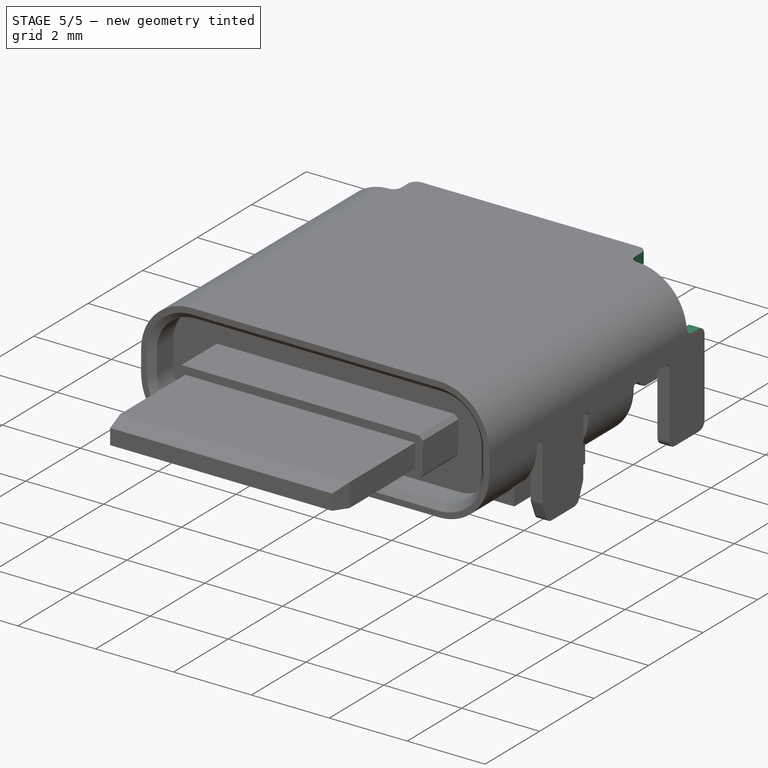
[diagram: stage 5 of 5 — iso view after this stage's code; geometry added in this stage tinted green]
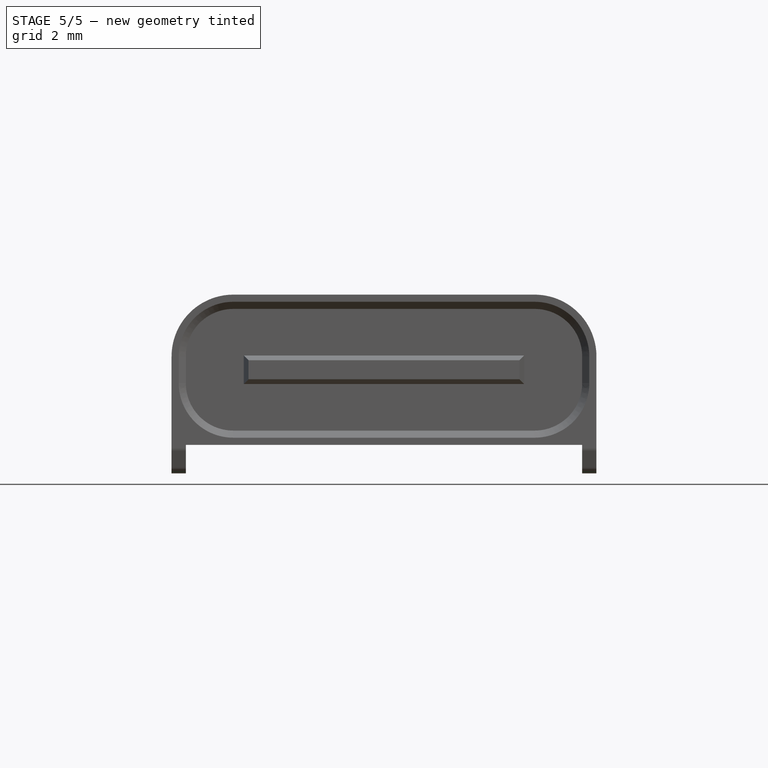
[diagram: stage 5 of 5 — front view after this stage's code; geometry added in this stage tinted green]
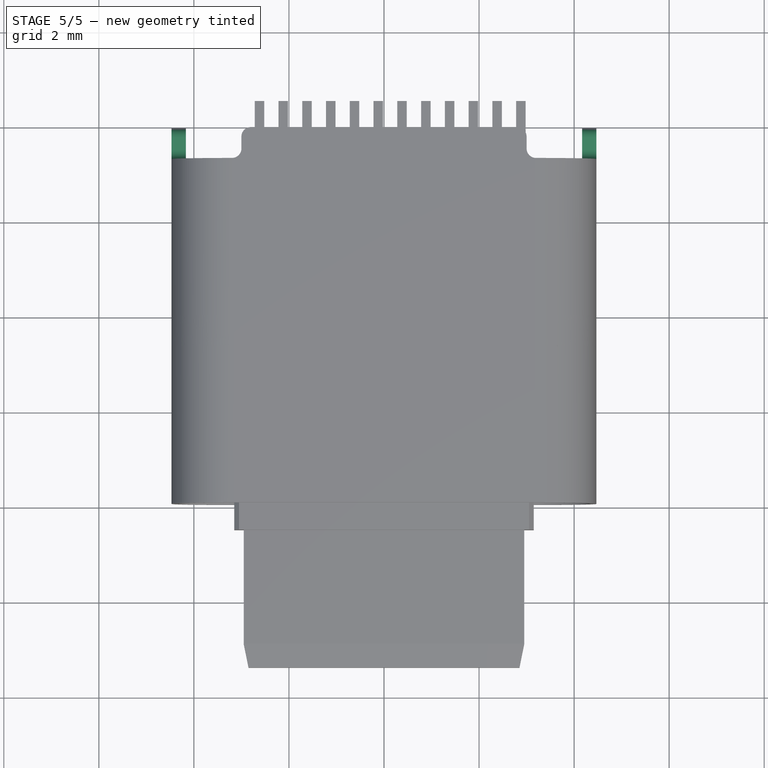
[diagram: stage 5 of 5 — top view after this stage's code; geometry added in this stage tinted green]
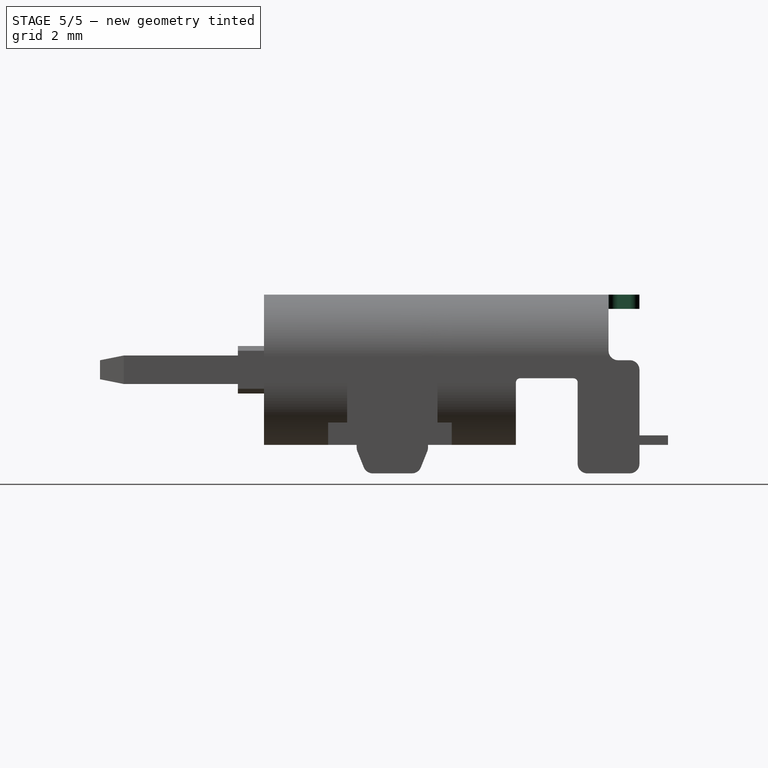
[diagram: stage 5 of 5 — right view after this stage's code; geometry added in this stage tinted green]
FEATURE [PartDesign::Chamfer] Chamfer002
  Angle = 45
  Base = -> Chamfer001 [Edge210]
  BaseFeature = -> Chamfer001
  ChamferType = 1
  FlipDirection = false
  Placement = pos=(0,0,0) rot=(1,0,0;1.5708rad)
  Size = 0.2
  Size2 = 0.5
  SupportTransform = false
  UseAllEdges = false
FEATURE [PartDesign::Fillet] Fillet003
  Base = -> Chamfer002 [Edge25,Edge26,Edge28,Edge31,Edge208,Edge214,Edge212,Edge210,Edge165,Edge84,Edge92,Edge88]
  BaseFeature = -> Chamfer002
  Placement = pos=(0,0,0) rot=(1,0,0;1.5708rad)
  Radius = 0.2
  SupportTransform = false
  UseAllEdges = false
FEATURE [Sketcher::SketchObject] Sketch004
  ExternalGeometry = -> [Fillet003]
  FullyConstrained = true
  MapMode = 5
  Placement = pos=(0,-4e-16,-1.58) rot=(1,0,0;3.14159rad)
  Support = -> [Fillet003]
  sketch-geometry (4):
    g0: LineSegment StartX=-2.9 StartY=-1.35 StartZ=0 EndX=2.9 EndY=-1.35 EndZ=0
    g1: LineSegment StartX=2.9 StartY=-1.35 StartZ=0 EndX=2.9 EndY=-3.95 EndZ=0
    g2: LineSegment StartX=2.9 StartY=-3.95 StartZ=0 EndX=-2.9 EndY=-3.95 EndZ=0
    g3: LineSegment StartX=-2.9 StartY=-3.95 StartZ=0 EndX=-2.9 EndY=-1.35 EndZ=0
  constraints (10):
    c: Coincident(g0,g1)
    c: Coincident(g1,g2)
    c: Coincident(g2,g3)
    c: Coincident(g3,g0)
    c: Horizontal(g0)
    c: Horizontal(g2)
    c: Vertical(g1)
    c: Vertical(g3)
    c: Coincident(g0,g-3)
    c: Coincident(g1,g-4)
FEATURE [PartDesign::Pocket] Pocket002
  BaseFeature = -> Fillet003
  Direction = (0,2e-16,1)
  Length = 0.5
  Length2 = 5
  Placement = pos=(0,0,0) rot=(1,0,0;1.5708rad)
  Profile = -> Sketch004
  ReferenceAxis = -> Sketch004 [N_Axis]
  Refine = true
  Type = 0
FEATURE [Sketcher::SketchObject] Sketch005
  ExternalGeometry = -> [Pocket002]
  FullyConstrained = true
  MapMode = 5
  Placement = pos=(-1e-16,3.95,-2.4e-15) rot=(-1,0,0;1.5708rad)
  Support = -> [Pocket002]
  sketch-geometry (8):
    g0: LineSegment StartX=-4.7 StartY=-0.2 StartZ=0 EndX=-3 EndY=-0.2 EndZ=0
    g1: LineSegment StartX=-3 StartY=-0.2 StartZ=0 EndX=-3 EndY=-1.9 EndZ=0
    g2: LineSegment StartX=-3 StartY=-1.9 StartZ=0 EndX=-4.7 EndY=-1.9 EndZ=0
    g3: LineSegment StartX=-4.7 StartY=-1.9 StartZ=0 EndX=-4.7 EndY=-0.2 EndZ=0
    g4: LineSegment StartX=3 StartY=-0.2 StartZ=0 EndX=4.7 EndY=-0.2 EndZ=0
    g5: LineSegment StartX=4.7 StartY=-0.2 StartZ=0 EndX=4.7 EndY=-1.9 EndZ=0
    g6: LineSegment StartX=4.7 StartY=-1.9 StartZ=0 EndX=3 EndY=-1.9 EndZ=0
    g7: LineSegment StartX=3 StartY=-1.9 StartZ=0 EndX=3 EndY=-0.2 EndZ=0
  constraints (23):
    c: Coincident(g0,g1)
    c: Coincident(g1,g2)
    c: Coincident(g2,g3)
    c: Coincident(g3,g0)
    c: Horizontal(g0)
    c: Horizontal(g2)
    c: Vertical(g1)
    c: Vertical(g3)
    c: Coincident(g4,g5)
    c: Coincident(g5,g6)
    c: Coincident(g6,g7)
    c: Coincident(g7,g4)
    c: Horizontal(g4)
    c: Horizontal(g6)
    c: Vertical(g5)
    c: Vertical(g7)
    c: Equal(g6,g2)
    c: Equal(g7,g1)
    c: Symmetric(g0,g4,g-2)
    c: DistanceY(g0,g-1) = 0.2
    c: DistanceX(g0,g4) = 6
    c: Equal(g2,g3)
    c: DistanceX(g2,g2) = 1.7
FEATURE [PartDesign::Pocket] Pocket003
  BaseFeature = -> Pocket002
  Direction = (0,-1,4e-16)
  Length = 0.65
  Length2 = 5
  Placement = pos=(0,0,0) rot=(1,0,0;1.5708rad)
  Profile = -> Sketch005
  ReferenceAxis = -> Sketch005 [N_Axis]
  Type = 0
FEATURE [PartDesign::Fillet] Fillet004
  Base = -> Pocket003 [Edge64,Edge68,Edge62,Edge160,Edge247,Edge246,Edge245,Edge258]
  BaseFeature = -> Pocket003
  Placement = pos=(0,0,0) rot=(1,0,0;1.5708rad)
  Radius = 0.2
  SupportTransform = false
  UseAllEdges = false
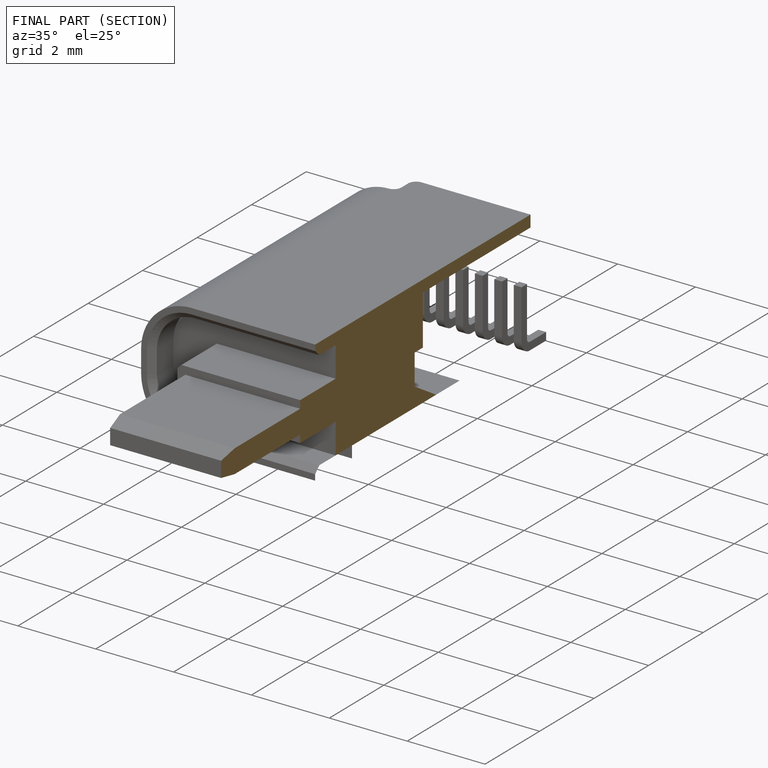
[diagram: finished part — half-section view (interior)]
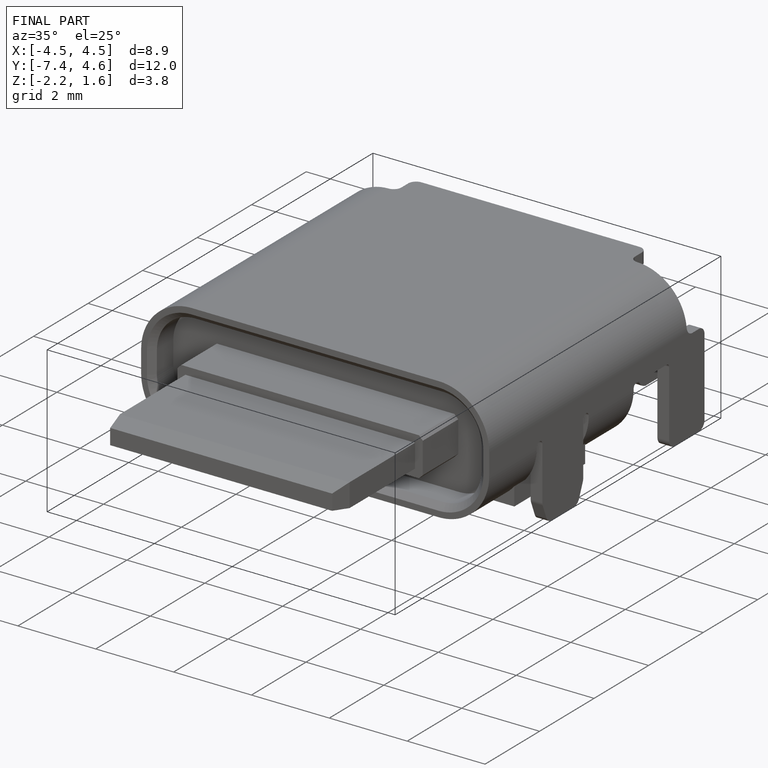
[diagram: finished part — iso view with bounding-box wireframe]
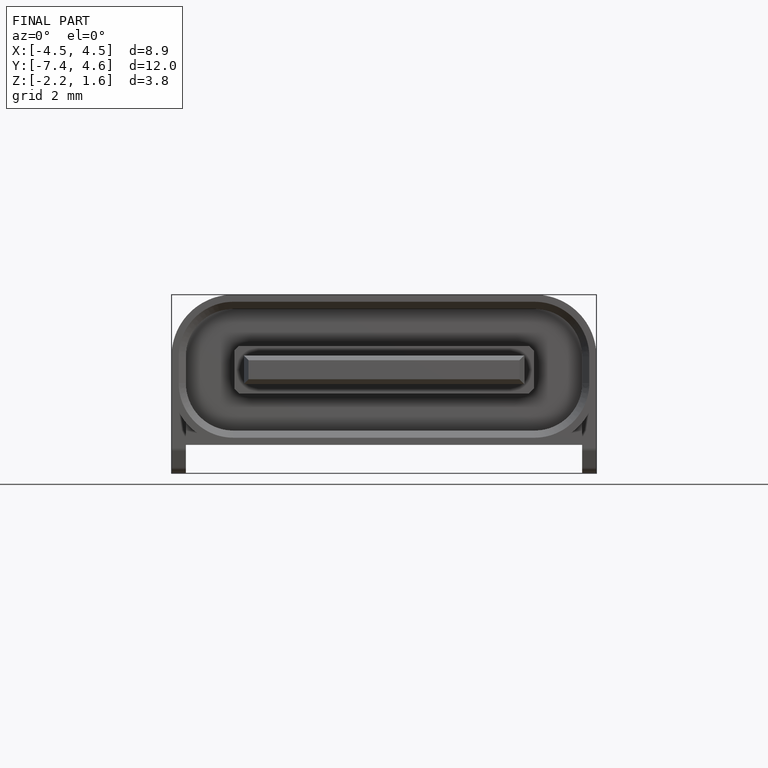
[diagram: finished part — front view with bounding-box wireframe]
